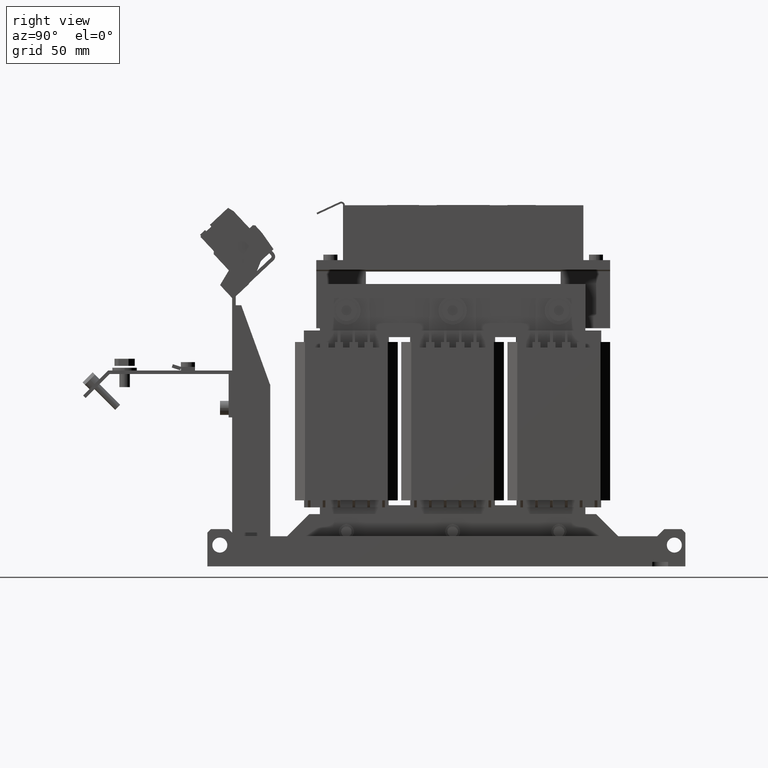
[diagram: clean part render]
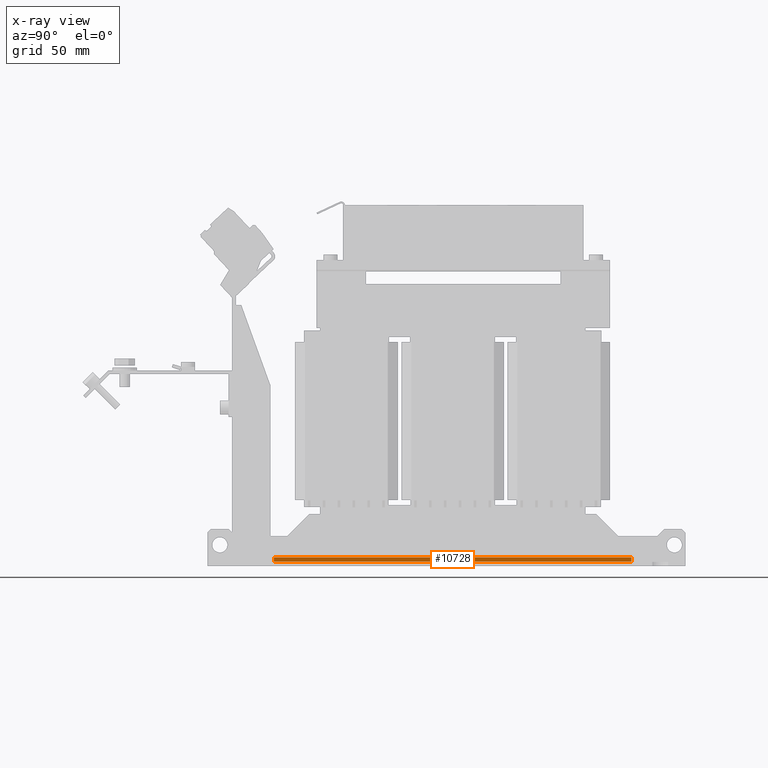
[diagram: x-ray — body ghosted, one internal face saturated and labeled with its STEP entity id]
A machine part, right view, then the same camera in x-ray: the body is ghosted and one INTERNAL B-rep face — a face not visible from any outside direction — is saturated and labeled: STEP entity #10728.
In plain terms, the highlighted planar face has unit normal (1, 0, 0).
Its self-contained STEP definition (entity closure, byte-faithful):
#2204=DIRECTION('',(0.E0,1.E0,0.E0));
#2205=VECTOR('',#2204,2.02E2);
#2206=CARTESIAN_POINT('',(5.075E1,-9.75E1,0.E0));
#2207=LINE('',#2206,#2205);
#3149=DIRECTION('',(0.E0,0.E0,-1.E0));
#3150=VECTOR('',#3149,2.477856552690E0);
#3151=CARTESIAN_POINT('',(5.075E1,1.045E2,2.477856552690E0));
#3152=LINE('',#3151,#3150);
#3277=DIRECTION('',(0.E0,0.E0,-1.E0));
#3278=VECTOR('',#3277,2.477856552690E0);
#3279=CARTESIAN_POINT('',(5.075E1,-9.75E1,2.477856552690E0));
#3280=LINE('',#3279,#3278);
#3386=DIRECTION('',(0.E0,-1.E0,0.E0));
#3387=VECTOR('',#3386,2.02E2);
#3388=CARTESIAN_POINT('',(5.075E1,1.045E2,2.477856552690E0));
#3389=LINE('',#3388,#3387);
#5054=CARTESIAN_POINT('',(5.075E1,1.045E2,2.477856552690E0));
#5055=VERTEX_POINT('',#5054);
#5066=CARTESIAN_POINT('',(5.075E1,-9.75E1,2.477856552690E0));
#5067=VERTEX_POINT('',#5066);
#5074=CARTESIAN_POINT('',(5.075E1,1.045E2,0.E0));
#5076=VERTEX_POINT('',#5074);
#5082=CARTESIAN_POINT('',(5.075E1,-9.75E1,0.E0));
#5084=VERTEX_POINT('',#5082);
#10717=CARTESIAN_POINT('',(5.075E1,1.045E2,2.477856552690E0));
#10718=DIRECTION('',(1.E0,0.E0,0.E0));
#10719=DIRECTION('',(0.E0,0.E0,-1.E0));
#10720=AXIS2_PLACEMENT_3D('',#10717,#10718,#10719);
#10721=PLANE('',#10720);
#10722=ORIENTED_EDGE('',*,*,#9075,.F.);
#10723=ORIENTED_EDGE('',*,*,#10555,.F.);
#10724=ORIENTED_EDGE('',*,*,#10710,.F.);
#10725=ORIENTED_EDGE('',*,*,#10402,.T.);
#10726=EDGE_LOOP('',(#10722,#10723,#10724,#10725));
#10727=FACE_OUTER_BOUND('',#10726,.F.);
#10728=ADVANCED_FACE('',(#10727),#10721,.T.);
#9075=EDGE_CURVE('',#5084,#5076,#2207,.T.);
#10402=EDGE_CURVE('',#5055,#5076,#3152,.T.);
#10555=EDGE_CURVE('',#5067,#5084,#3280,.T.);
#10710=EDGE_CURVE('',#5055,#5067,#3389,.T.);